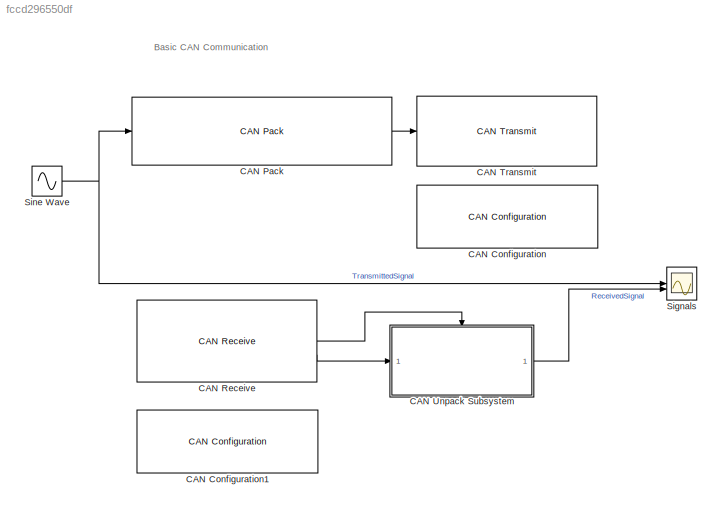
MODEL slx_fccd296550df
KIND model
CONFIG AbsTol = auto
CONFIG EnableMultiTasking = off
CONFIG FixedStep = auto
CONFIG MaxStep = auto
CONFIG MinStep = auto
CONFIG RelTol = 1e-3
CONFIG SampleTimeConstraint = Unconstrained
CONFIG SolverName = VariableStepAuto
CONFIG StartTime = 0.0
CONFIG StopTime = 50
BLOCK [Reference] CAN Configuration  REF=canlib/CAN Configuration
  SourceBlock = canlib/CAN Configuration
  SourceType = CAN Configuration
BLOCK [Reference] CAN Configuration1  REF=canlib/CAN Configuration
  SourceBlock = canlib/CAN Configuration
  SourceType = CAN Configuration
BLOCK [Reference] CAN Pack  REF=canmsglib/CAN Pack
  SourceBlock = canmsglib/CAN Pack
  SourceType = CAN Pack
BLOCK [Reference] CAN Receive  REF=canlib/CAN Receive
  SourceBlock = canlib/CAN Receive
  SourceType = CAN Receive
BLOCK [Reference] CAN Transmit  REF=canlib/CAN Transmit
  SourceBlock = canlib/CAN Transmit
  SourceType = CAN Transmit
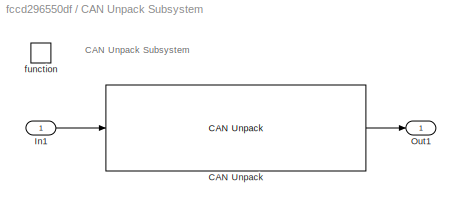
BLOCK [SubSystem] CAN Unpack Subsystem
  TreatAsAtomicUnit = on
BLOCK [Reference] CAN Unpack Subsystem/CAN Unpack  REF=canmsglib/CAN Unpack
  SourceBlock = canmsglib/CAN Unpack
  SourceType = CAN Unpack
BLOCK [Inport] CAN Unpack Subsystem/In1
BLOCK [Outport] CAN Unpack Subsystem/Out1
  VectorParamsAs1DForOutWhenUnconnected = off
BLOCK [TriggerPort] CAN Unpack Subsystem/function
  StatesWhenEnabling = held
  TriggerType = function-call
  VariantControl = Variant
BLOCK [Scope] Signals
  Floating = off
  NumInputPorts = 2
  ScopeSpecificationString = Simulink.scopes.TimeScopeBlockCfg('CurrentConfiguration', extmgr.ConfigurationSet(extmgr.Configuration('Core','General UI',true),extmgr.Configuration('Core','Source UI',true),extmgr.Configuration('Sources','WiredSimulink',true),extmgr.Configuration('Visuals','Time Domain',true,'SerializedDisplays',{struct('MinYLimReal','-1.25','MaxYLimReal','1.25','YLabelReal','','MinYLimMag','0.00000','MaxYLimMag...<+2221ch>
BLOCK [Sin] Sine Wave
  SampleTime = 0.01
ANNOTATION (root): Basic CAN Communication
ANNOTATION CAN Unpack Subsystem: CAN Unpack Subsystem
LINE CAN Pack:1 -> CAN Transmit:1
LINE CAN Receive:1 -> CAN Unpack Subsystem:trigger
LINE CAN Receive:2 -> CAN Unpack Subsystem:1
LINE CAN Unpack Subsystem/CAN Unpack:1 -> CAN Unpack Subsystem/Out1:1
LINE CAN Unpack Subsystem/In1:1 -> CAN Unpack Subsystem/CAN Unpack:1
LINE CAN Unpack Subsystem:1 -> Signals:2
NET Sine Wave:1 -> CAN Pack:1, Signals:1
note: NET lines group one-source signal fan-out (src -> all destinations, sorted); 1:1 wires keep LINE
